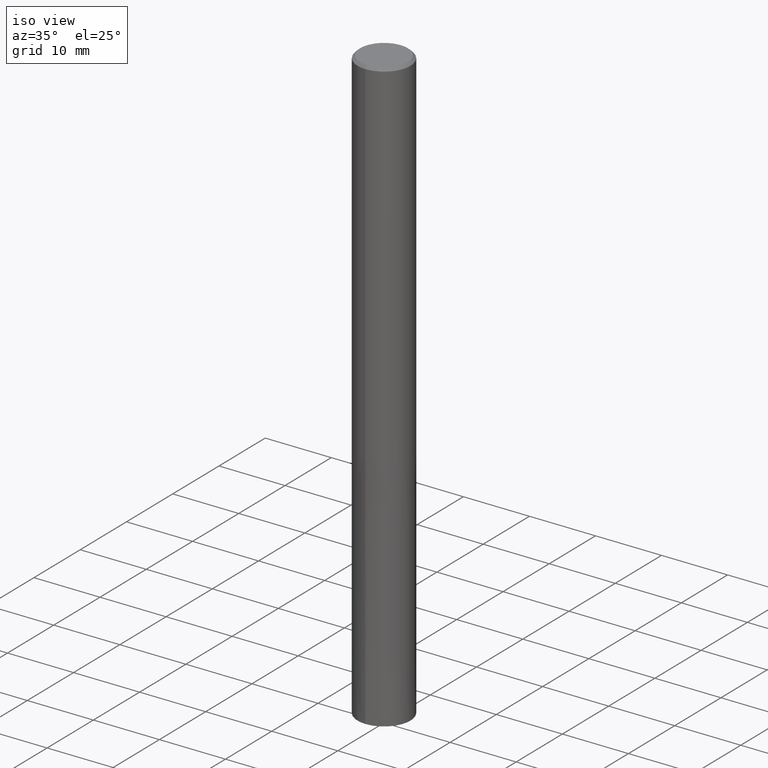
[diagram: clean part render]
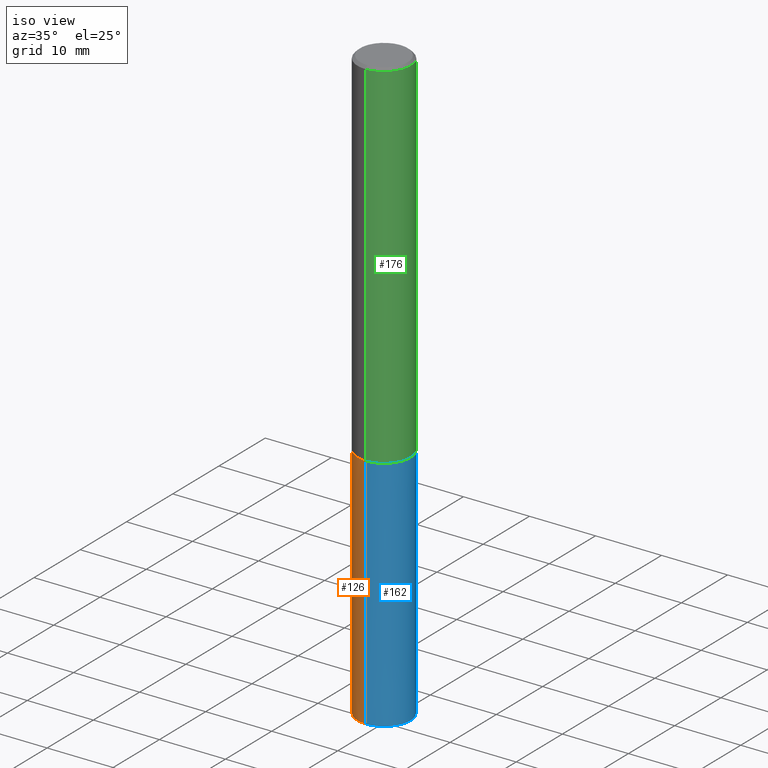
[diagram: same view with three faces highlighted in distinct colors, each labeled with its STEP entity id]
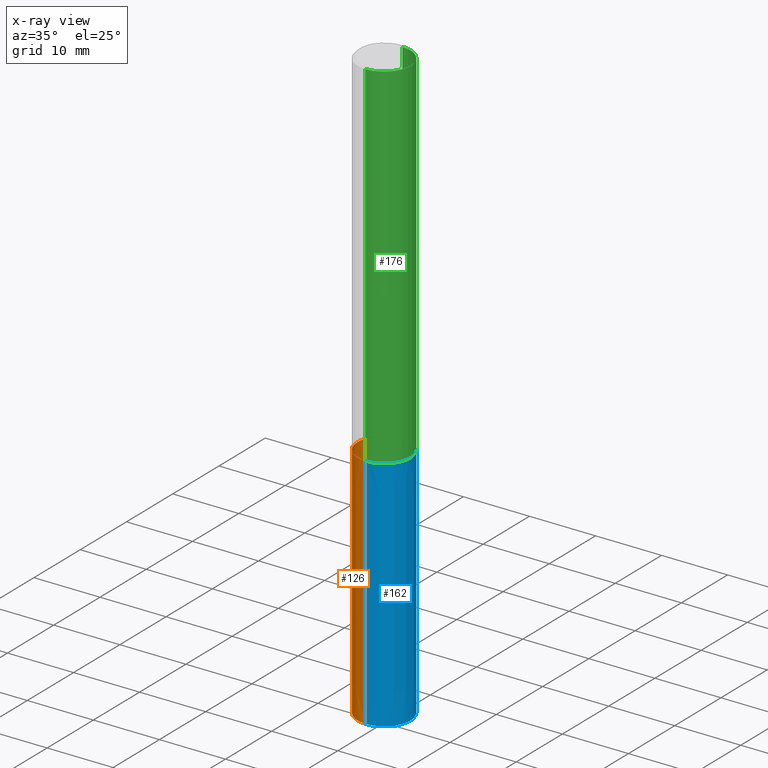
[diagram: x-ray of the same camera — body ghosted, the three highlighted faces saturated]
A machine part, iso view with three faces highlighted in distinct colors.
The next image is the same camera in x-ray (body ghosted, the three faces saturated) — at least one of them is partly hidden behind the body in this view.
Their STEP definitions:

[orange] entity #126 — the highlighted conical surface has half-angle 0 deg.
#100=EDGE_CURVE('',#174,#206,#246,.T.);
#106=EDGE_CURVE('',#206,#108,#252,.T.);
#108=VERTEX_POINT('',#254);
#126=ADVANCED_FACE('',(#275),#276,.T.);
#174=VERTEX_POINT('',#331);
#178=VERTEX_POINT('',#336);
#190=EDGE_CURVE('',#174,#178,#351,.T.);
#198=EDGE_CURVE('',#108,#178,#360,.T.);
#206=VERTEX_POINT('',#369);
#246=LINE('',#404,#405);
#252=CIRCLE('',#415,3.9999);
#254=CARTESIAN_POINT('',(0.0,3.9999,-54.0));
#275=FACE_OUTER_BOUND('',#441,.T.);
#276=CONICAL_SURFACE('',#442,3.99995,2.7777777777765E-006);
#331=CARTESIAN_POINT('',(4.89842541528951E-016,-4.0,-90.0));
#336=CARTESIAN_POINT('',(0.0,4.0,-90.0));
#351=CIRCLE('',#535,4.0);
#360=LINE('',#546,#547);
#369=CARTESIAN_POINT('',(4.89830295465413E-016,-3.9999,-54.0));
#404=CARTESIAN_POINT('',(4.89836418497182E-016,-3.99995,-72.0));
#405=VECTOR('',#585,1.0);
#415=AXIS2_PLACEMENT_3D('',#590,#591,#592);
#441=EDGE_LOOP('',(#624,#625,#626,#627));
#442=AXIS2_PLACEMENT_3D('',#628,#629,#630);
#535=AXIS2_PLACEMENT_3D('',#726,#727,#728);
#546=CARTESIAN_POINT('',(-4.89836418497182E-016,3.99995,-72.0));
#547=VECTOR('',#738,1.0);
#585=DIRECTION('',(-3.40168431616732E-022,2.77777777777292E-006,0.999999999996142));
#590=CARTESIAN_POINT('',(0.0,0.0,-54.0));
#591=DIRECTION('',(0.0,0.0,-1.0));
#592=DIRECTION('',(0.0,1.0,0.0));
#624=ORIENTED_EDGE('',*,*,#198,.T.);
#625=ORIENTED_EDGE('',*,*,#190,.F.);
#626=ORIENTED_EDGE('',*,*,#100,.T.);
#627=ORIENTED_EDGE('',*,*,#106,.T.);
#628=CARTESIAN_POINT('',(0.0,0.0,-72.0));
#629=DIRECTION('',(0.0,-0.0,-1.0));
#630=DIRECTION('',(0.0,1.0,0.0));
#726=CARTESIAN_POINT('',(0.0,0.0,-90.0));
#727=DIRECTION('',(0.0,0.0,-1.0));
#728=DIRECTION('',(0.0,1.0,0.0));
#738=DIRECTION('',(-3.40168431616733E-022,2.77777777777292E-006,-0.999999999996142));

[blue] entity #162 — the highlighted conical surface has half-angle 0 deg.
#100=EDGE_CURVE('',#174,#206,#246,.T.);
#108=VERTEX_POINT('',#254);
#124=EDGE_CURVE('',#108,#206,#273,.T.);
#156=EDGE_CURVE('',#178,#174,#310,.T.);
#162=ADVANCED_FACE('',(#318),#319,.T.);
#174=VERTEX_POINT('',#331);
#178=VERTEX_POINT('',#336);
#198=EDGE_CURVE('',#108,#178,#360,.T.);
#206=VERTEX_POINT('',#369);
#246=LINE('',#404,#405);
#254=CARTESIAN_POINT('',(0.0,3.9999,-54.0));
#273=CIRCLE('',#439,3.9999);
#310=CIRCLE('',#486,4.0);
#318=FACE_OUTER_BOUND('',#496,.T.);
#319=CONICAL_SURFACE('',#497,3.99995,2.7777777777765E-006);
#331=CARTESIAN_POINT('',(4.89842541528951E-016,-4.0,-90.0));
#336=CARTESIAN_POINT('',(0.0,4.0,-90.0));
#360=LINE('',#546,#547);
#369=CARTESIAN_POINT('',(4.89830295465413E-016,-3.9999,-54.0));
#404=CARTESIAN_POINT('',(4.89836418497182E-016,-3.99995,-72.0));
#405=VECTOR('',#585,1.0);
#439=AXIS2_PLACEMENT_3D('',#620,#621,#622);
#486=AXIS2_PLACEMENT_3D('',#672,#673,#674);
#496=EDGE_LOOP('',(#685,#686,#687,#688));
#497=AXIS2_PLACEMENT_3D('',#689,#690,#691);
#546=CARTESIAN_POINT('',(-4.89836418497182E-016,3.99995,-72.0));
#547=VECTOR('',#738,1.0);
#585=DIRECTION('',(-3.40168431616732E-022,2.77777777777292E-006,0.999999999996142));
#620=CARTESIAN_POINT('',(0.0,0.0,-54.0));
#621=DIRECTION('',(0.0,0.0,-1.0));
#622=DIRECTION('',(0.0,1.0,0.0));
#672=CARTESIAN_POINT('',(0.0,0.0,-90.0));
#673=DIRECTION('',(0.0,0.0,-1.0));
#674=DIRECTION('',(0.0,1.0,0.0));
#685=ORIENTED_EDGE('',*,*,#198,.F.);
#686=ORIENTED_EDGE('',*,*,#124,.T.);
#687=ORIENTED_EDGE('',*,*,#100,.F.);
#688=ORIENTED_EDGE('',*,*,#156,.F.);
#689=CARTESIAN_POINT('',(0.0,0.0,-72.0));
#690=DIRECTION('',(0.0,-0.0,-1.0));
#691=DIRECTION('',(0.0,1.0,0.0));
#738=DIRECTION('',(-3.40168431616733E-022,2.77777777777292E-006,-0.999999999996142));

[green] entity #176 — the highlighted cylindrical surface (edge-blend (fillet) strip) has radius 4 mm, axis along (-0, -0, 1).
#146=EDGE_CURVE('',#196,#150,#300,.T.);
#150=VERTEX_POINT('',#304);
#158=EDGE_CURVE('',#182,#200,#312,.T.);
#166=EDGE_CURVE('',#182,#150,#323,.T.);
#172=EDGE_CURVE('',#200,#196,#329,.T.);
#176=ADVANCED_FACE('',(#333),#334,.T.);
#182=VERTEX_POINT('',#340);
#196=VERTEX_POINT('',#358);
#200=VERTEX_POINT('',#362);
#300=LINE('',#472,#473);
#304=CARTESIAN_POINT('',(4.89842541528951E-016,-4.0,-0.399999999999999));
#312=LINE('',#489,#490);
#323=CIRCLE('',#502,4.0);
#329=CIRCLE('',#511,4.0);
#333=FACE_OUTER_BOUND('',#515,.T.);
#334=CYLINDRICAL_SURFACE('',#516,4.0);
#340=CARTESIAN_POINT('',(0.0,4.0,-0.399999999999999));
#358=CARTESIAN_POINT('',(4.89842541528951E-016,-4.0,-54.0));
#362=CARTESIAN_POINT('',(0.0,4.0,-54.0));
#472=CARTESIAN_POINT('',(4.89842541528951E-016,-4.0,-27.2));
#473=VECTOR('',#665,1.0);
#489=CARTESIAN_POINT('',(-4.89842541528951E-016,4.0,-27.2));
#490=VECTOR('',#675,1.0);
#502=AXIS2_PLACEMENT_3D('',#692,#693,#694);
#511=AXIS2_PLACEMENT_3D('',#696,#697,#698);
#515=EDGE_LOOP('',(#700,#701,#702,#703));
#516=AXIS2_PLACEMENT_3D('',#704,#705,#706);
#665=DIRECTION('',(-0.0,-0.0,1.0));
#675=DIRECTION('',(0.0,0.0,-1.0));
#692=CARTESIAN_POINT('',(0.0,0.0,-0.399999999999999));
#693=DIRECTION('',(0.0,0.0,-1.0));
#694=DIRECTION('',(0.0,1.0,0.0));
#696=CARTESIAN_POINT('',(0.0,0.0,-54.0));
#697=DIRECTION('',(0.0,0.0,-1.0));
#698=DIRECTION('',(0.0,1.0,0.0));
#700=ORIENTED_EDGE('',*,*,#158,.F.);
#701=ORIENTED_EDGE('',*,*,#166,.T.);
#702=ORIENTED_EDGE('',*,*,#146,.F.);
#703=ORIENTED_EDGE('',*,*,#172,.F.);
#704=CARTESIAN_POINT('',(0.0,0.0,-27.2));
#705=DIRECTION('',(-0.0,-0.0,1.0));
#706=DIRECTION('',(0.0,1.0,0.0));